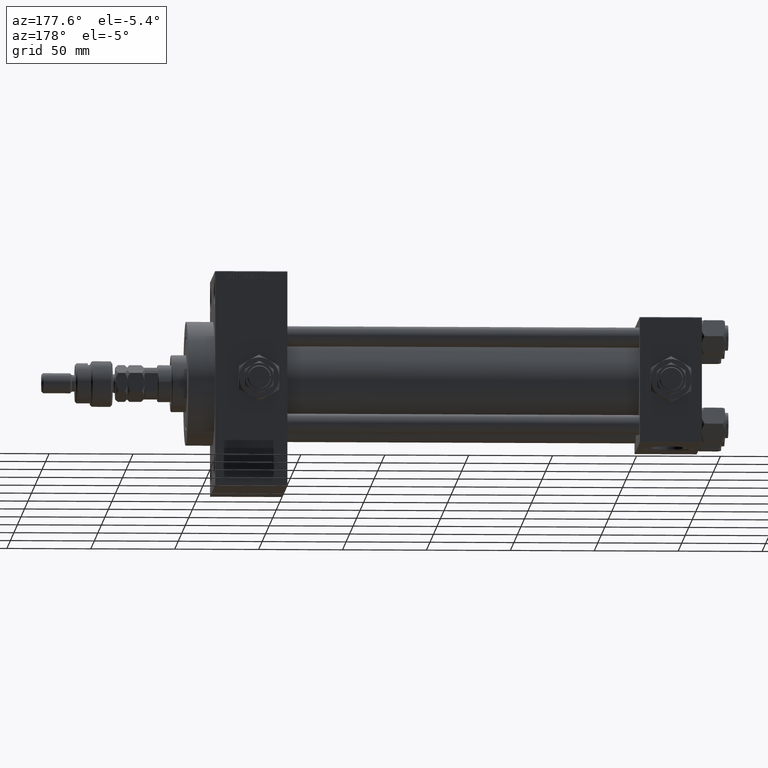
[diagram: clean part render]
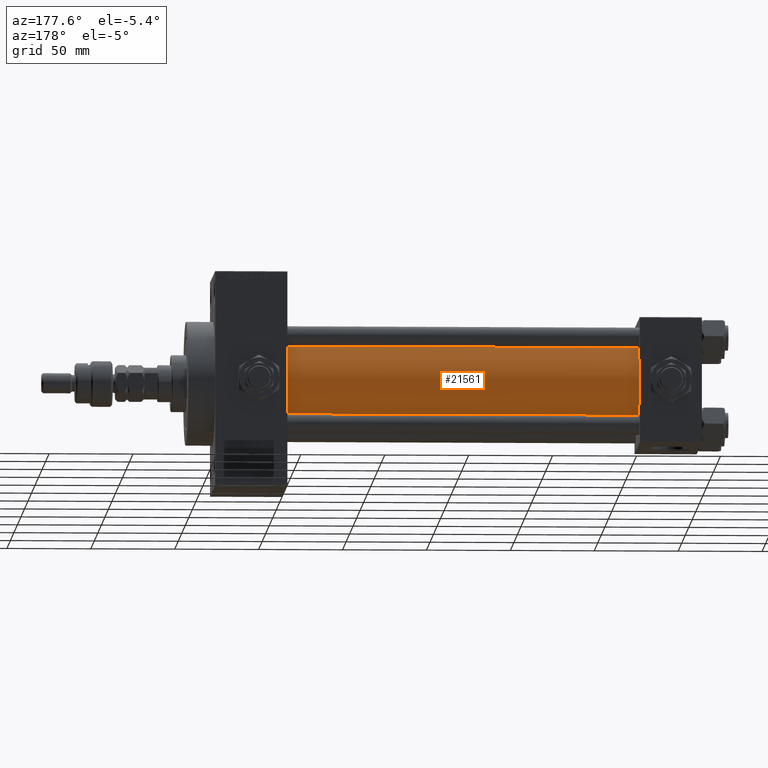
[diagram: same view with one face highlighted and labeled with its STEP entity id]
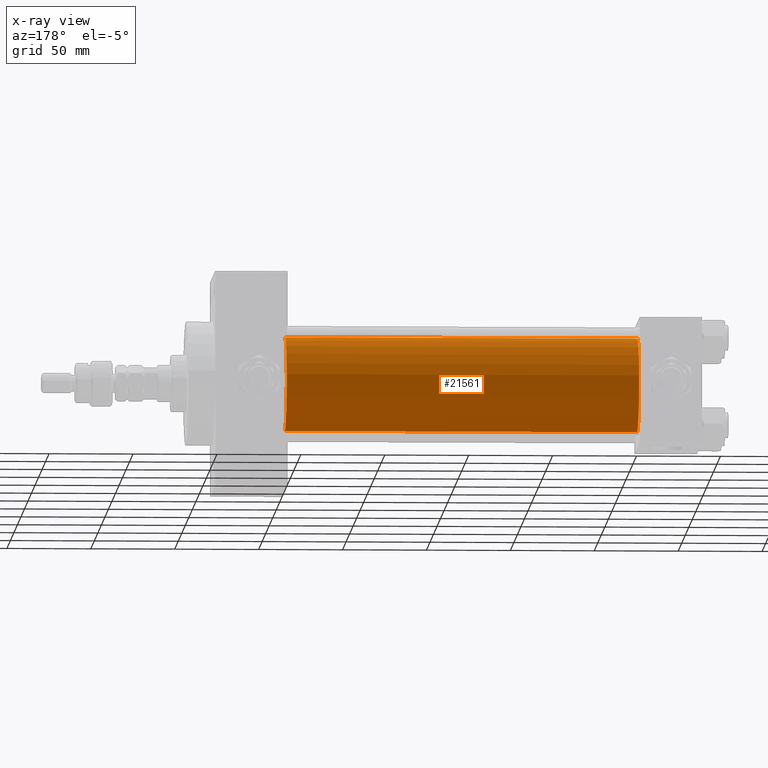
[diagram: x-ray of the same camera — body ghosted, the highlighted face saturated]
A machine part, auxiliary view. The second image highlights one B-rep face of the part: STEP entity #21561.
The next image is the same camera in x-ray: the body ghosted, the highlighted face saturated — about 0% of this face is hidden behind the body in this view.
In plain terms, the highlighted cylindrical surface (partial cylindrical patch) has radius 28 mm, axis along (-1, -0, -0).
Its self-contained STEP definition (entity closure, byte-faithful):
#1868 = AXIS2_PLACEMENT_3D ( 'NONE', #36960, #32219, #12122 ) ;
#4384 = DIRECTION ( 'NONE',  ( -1.000000000000000000, -0.000000000000000000, -0.000000000000000000 ) ) ;
#6632 = ORIENTED_EDGE ( 'NONE', *, *, #44904, .F. ) ;
#7787 = CIRCLE ( 'NONE', #1868, 28.00000000000000000 ) ;
#7974 = AXIS2_PLACEMENT_3D ( 'NONE', #23297, #39447, #23555 ) ;
#8041 = VERTEX_POINT ( 'NONE', #17625 ) ;
#8163 = EDGE_LOOP ( 'NONE', ( #6632, #22023, #46578, #23227 ) ) ;
#10970 = EDGE_CURVE ( 'NONE', #20716, #21521, #24472, .T. ) ;
#11645 = DIRECTION ( 'NONE',  ( -1.000000000000000000, -0.000000000000000000, -0.000000000000000000 ) ) ;
#12122 = DIRECTION ( 'NONE',  ( 0.000000000000000000, 0.000000000000000000, -1.000000000000000000 ) ) ;
#14252 = DIRECTION ( 'NONE',  ( -1.000000000000000000, -0.000000000000000000, -0.000000000000000000 ) ) ;
#17625 = CARTESIAN_POINT ( 'NONE',  ( 37.00000000000000711, 8.269258236473784371E-16, -28.00000000000000000 ) ) ;
#20716 = VERTEX_POINT ( 'NONE', #42231 ) ;
#21521 = VERTEX_POINT ( 'NONE', #26983 ) ;
#21561 = ADVANCED_FACE ( 'NONE', ( #23524 ), #39678, .T. ) ;
#22023 = ORIENTED_EDGE ( 'NONE', *, *, #31253, .T. ) ;
#22323 = CIRCLE ( 'NONE', #7974, 28.00000000000000000 ) ;
#23227 = ORIENTED_EDGE ( 'NONE', *, *, #10970, .F. ) ;
#23297 = CARTESIAN_POINT ( 'NONE',  ( 37.00000000000000711, -2.602085213965210642E-15, 0.000000000000000000 ) ) ;
#23524 = FACE_OUTER_BOUND ( 'NONE', #8163, .T. ) ;
#23555 = DIRECTION ( 'NONE',  ( 0.000000000000000000, 0.000000000000000000, 1.000000000000000000 ) ) ;
#24060 = CARTESIAN_POINT ( 'NONE',  ( 247.0000000000000000, 8.269258236473784371E-16, -28.00000000000000000 ) ) ;
#24472 = LINE ( 'NONE', #40634, #41630 ) ;
#26983 = CARTESIAN_POINT ( 'NONE',  ( 37.00000000000000711, -2.602085213965210642E-15, 28.00000000000000000 ) ) ;
#28809 = LINE ( 'NONE', #29073, #33551 ) ;
#29073 = CARTESIAN_POINT ( 'NONE',  ( 247.0000000000000000, 8.269258236473784371E-16, -28.00000000000000000 ) ) ;
#31253 = EDGE_CURVE ( 'NONE', #32497, #8041, #28809, .T. ) ;
#31739 = CARTESIAN_POINT ( 'NONE',  ( 247.0000000000000000, -2.602085213965210642E-15, 0.000000000000000000 ) ) ;
#32004 = DIRECTION ( 'NONE',  ( 0.000000000000000000, 0.000000000000000000, 1.000000000000000000 ) ) ;
#32219 = DIRECTION ( 'NONE',  ( 1.000000000000000000, 0.000000000000000000, 0.000000000000000000 ) ) ;
#32497 = VERTEX_POINT ( 'NONE', #24060 ) ;
#33551 = VECTOR ( 'NONE', #14252, 1000.000000000000000 ) ;
#36020 = AXIS2_PLACEMENT_3D ( 'NONE', #31739, #11645, #32004 ) ;
#36960 = CARTESIAN_POINT ( 'NONE',  ( 247.0000000000000000, -2.602085213965210642E-15, 0.000000000000000000 ) ) ;
#39447 = DIRECTION ( 'NONE',  ( 1.000000000000000000, -0.000000000000000000, 0.000000000000000000 ) ) ;
#39678 = CYLINDRICAL_SURFACE ( 'NONE', #36020, 28.00000000000000000 ) ;
#40634 = CARTESIAN_POINT ( 'NONE',  ( 247.0000000000000000, -2.602085213965210642E-15, 28.00000000000000000 ) ) ;
#41630 = VECTOR ( 'NONE', #4384, 1000.000000000000000 ) ;
#42231 = CARTESIAN_POINT ( 'NONE',  ( 247.0000000000000000, -2.602085213965210642E-15, 28.00000000000000000 ) ) ;
#44904 = EDGE_CURVE ( 'NONE', #32497, #20716, #7787, .T. ) ;
#46578 = ORIENTED_EDGE ( 'NONE', *, *, #50142, .T. ) ;
#50142 = EDGE_CURVE ( 'NONE', #8041, #21521, #22323, .T. ) ;